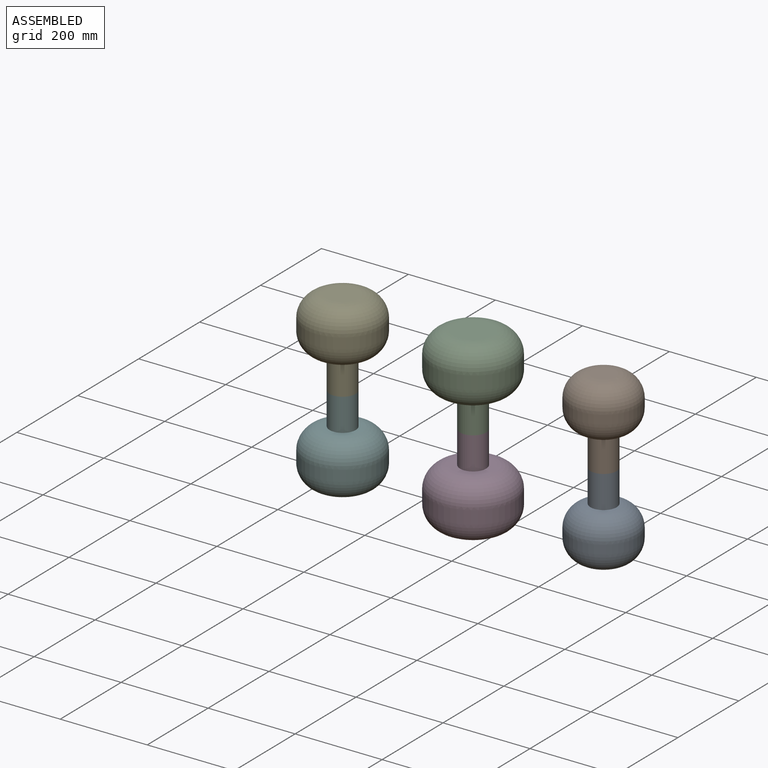
[diagram: assembled view]
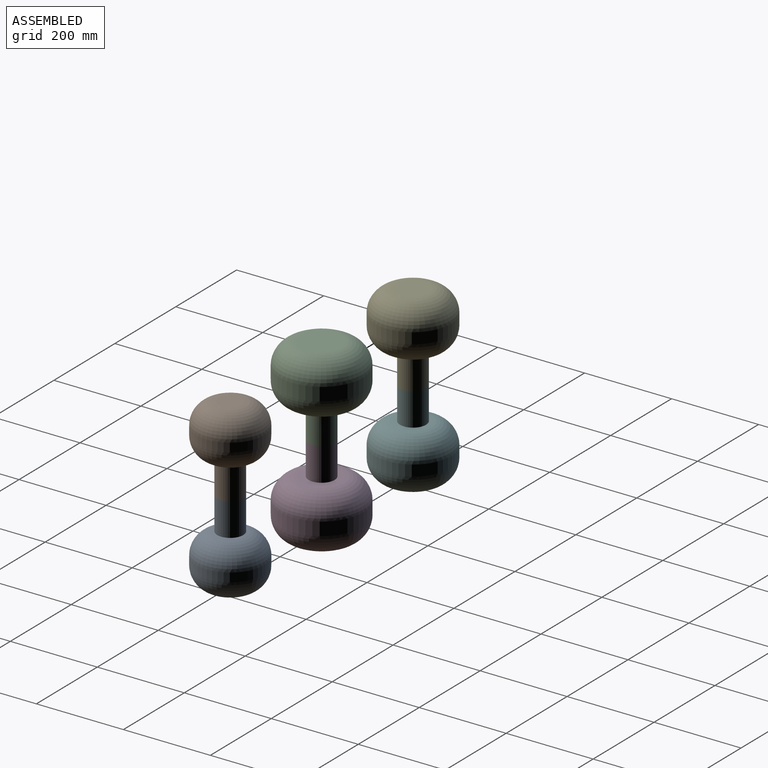
[diagram: assembled view, second angle]
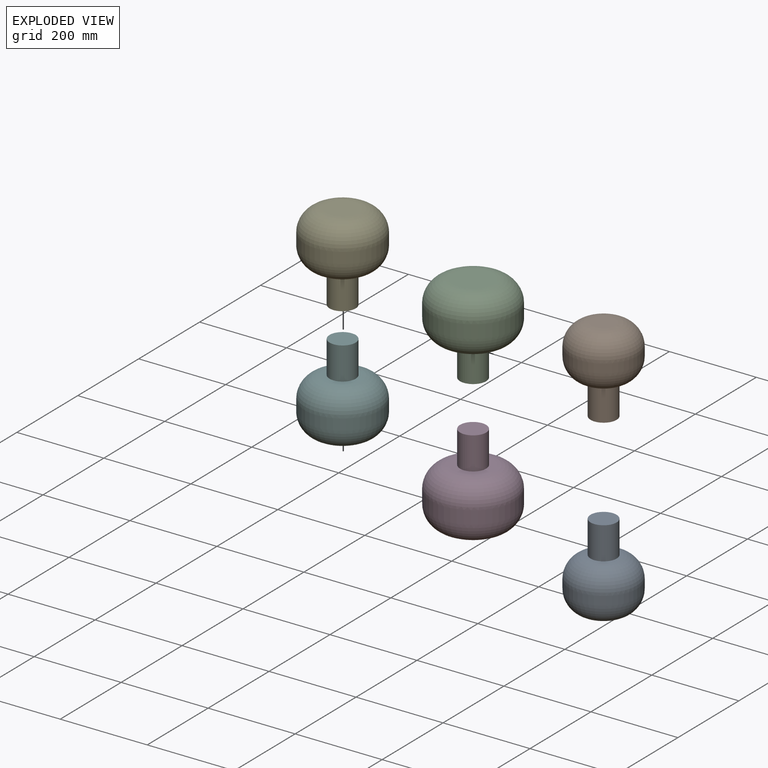
[diagram: exploded view]
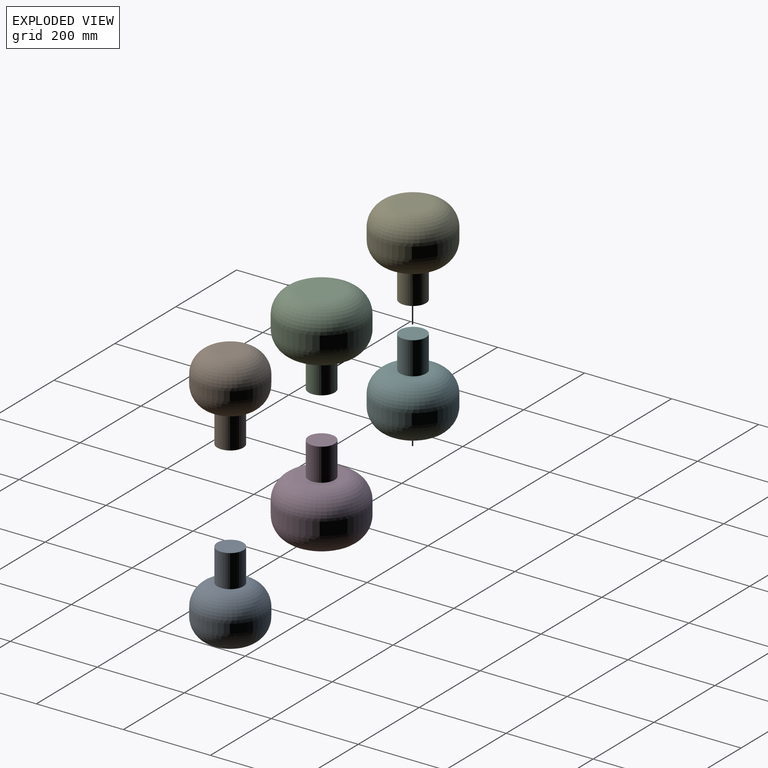
[diagram: exploded view, second angle]
ASSEMBLY  parts=6 mates=3
PART A: 6 faces, bbox 155x155x195 mm
  f0: cylinder r=30mm len=75mm, axis (0,0,-1), area 14137.2mm2, adj f1,f4
  f1: plane 60x60mm, normal (0,0,-1), area 2827.4mm2, adj f0
  f2: cylinder r=77.5mm len=155mm, axis (0,0,-1), area 9769.4mm2, adj f4,f5
  f3: plane 55x55mm, normal (0,0,1), area 2375.8mm2, adj f5
  f4: torus R=27.5mm, axis (0,0,-1), area 28826.9mm2, adj f0,f2
  f5: torus R=27.5mm, axis (0,0,1), area 29278.7mm2, adj f2,f3
PART B: same geometry as A
PART C: 7 faces, bbox 192x192x205 mm
  f0: cylinder r=30mm len=75mm, axis (0,0,-1), area 14137.2mm2, adj f1,f4
  f1: plane 60x60mm, normal (0,0,-1), area 2827.4mm2, adj f0
  f2: cylinder r=96mm len=192mm, axis (0,0,-1), area 18095.6mm2, adj f5,f6
  f3: plane 92x92mm, normal (0,0,1), area 6647.6mm2, adj f6
  f4: plane 92x92mm, normal (0,0,-1), area 3820.2mm2, adj f0,f5
  f5: torus R=46mm, axis (0,0,1), area 38408.1mm2, adj f2,f4
  f6: torus R=46mm, axis (0,0,1), area 38408.1mm2, adj f2,f3
PART D: same geometry as C
PART E: 7 faces, bbox 175x175x200 mm
  f0: cylinder r=30mm len=75mm, axis (0,0,-1), area 14137.2mm2, adj f1,f4
  f1: plane 60x60mm, normal (0,0,-1), area 2827.4mm2, adj f0
  f2: cylinder r=87.5mm len=175mm, axis (0,0,-1), area 13744.5mm2, adj f5,f6
  f3: plane 75x75mm, normal (0,0,1), area 4417.9mm2, adj f6
  f4: plane 75x75mm, normal (0,0,-1), area 1590.4mm2, adj f0,f5
  f5: torus R=37.5mm, axis (0,0,1), area 34213.5mm2, adj f2,f4
  f6: torus R=37.5mm, axis (0,0,1), area 34213.5mm2, adj f2,f3
PART F: same geometry as E
PLACE A rot(axis=(1,0,0),180deg) t=(-1318.08,-46.92,1000.03)mm
PLACE B t=(-1318.08,-46.92,1000.03)mm
PLACE C t=(-1318.08,-46.92,1000.03)mm
PLACE D rot(axis=(1,0,0),180deg) t=(-1318.08,-46.92,1000.03)mm
PLACE E t=(-1318.08,-46.92,1000.03)mm
PLACE F rot(axis=(1,0,0),180deg) t=(-1318.08,-46.92,1000.03)mm
MATE revolute F.f0 <-> E.f0  axis (0,0,1) through (-1618.08,-46.92,1000.03)mm
MATE revolute A.f0 <-> B.f0  axis (0,0,1) through (-1018.08,-46.92,1000.03)mm
MATE revolute D.f0 <-> C.f0  axis (0,0,1) through (-1318.08,-46.92,1000.03)mm
